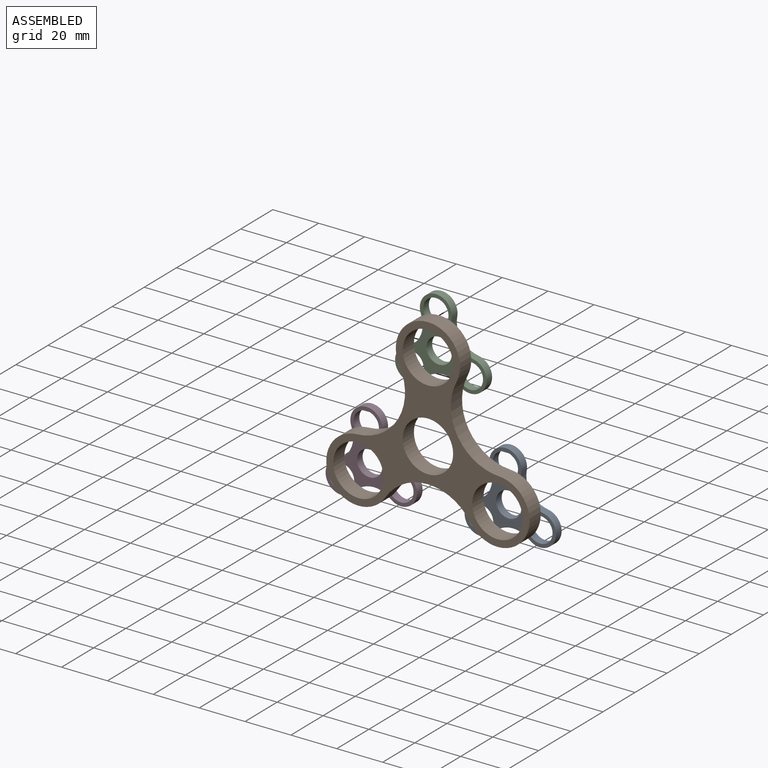
[diagram: assembled view]
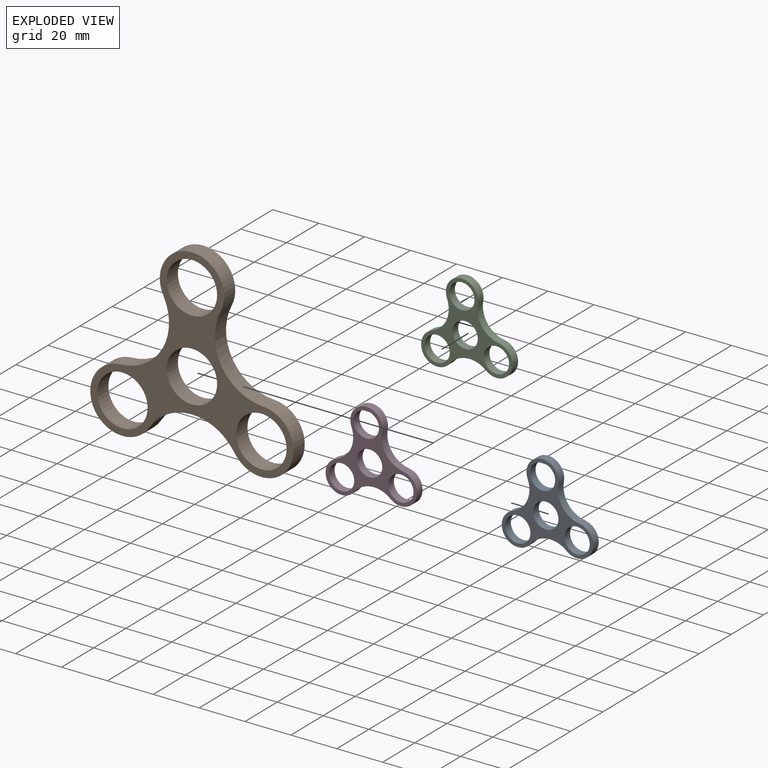
[diagram: exploded view]
GUIDED TOUR — MATED ASSEMBLY (Onshape document 0f2e64f7b2560d3460de28e0, AutoMate assembly 0f2e64f7b2560d3460de28e0_4292a1342529be8836060cc4_76e31e0c5da11d4ce6062992_default)

This assembly has 4 components, labeled P0..P3 below (a component is one placed occurrence of a part; the same part can appear more than once), held together by 1 mate. A mate is a constraint between two components; its type names the relative motion it leaves free:
  REVOLUTE — leaves rotation about the listed axis free (a hinge).
Axis/direction vectors are unit vectors and 'through' points are millimeter coordinates, both in the assembly's world frame.

MATES
  1. REVOLUTE "Revolute 1": P2 <-> P1, axis (0.000, -1.000, 0.000) through (3.50, -7.00, -2.67) mm

ASSEMBLY ORDER
  1. P3 — the base component [order verified]
  2. P0 [order verified]
  3. P2 [order verified]
  4. P1 [order verified]
Order-tag legend:
  [order verified] — this step's position reverses a verified removal order: the component was checked to insert without passing through the ones already placed.

Of the 4 components, 3 carry the full construction recipe — the FeatureScript program that regenerates the part's solid from scratch; the rest are supplied as boundary geometry only.
Each toured component is shown spotlighted twice — in the assembled view, then in the exploded view, where a leader line traces a displaced component back to its assembled socket (saturated green if recipe-attached, orange if geometry-only; every other component desaturated gray) — followed by its recipe or geometry summary and the mates that hold it.
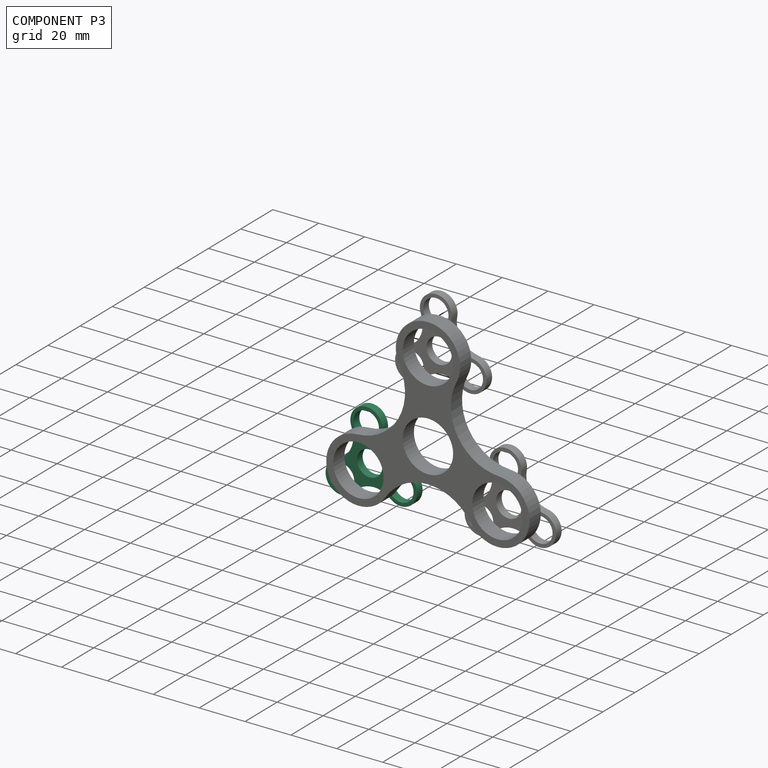
[diagram: component P3 — assembled]
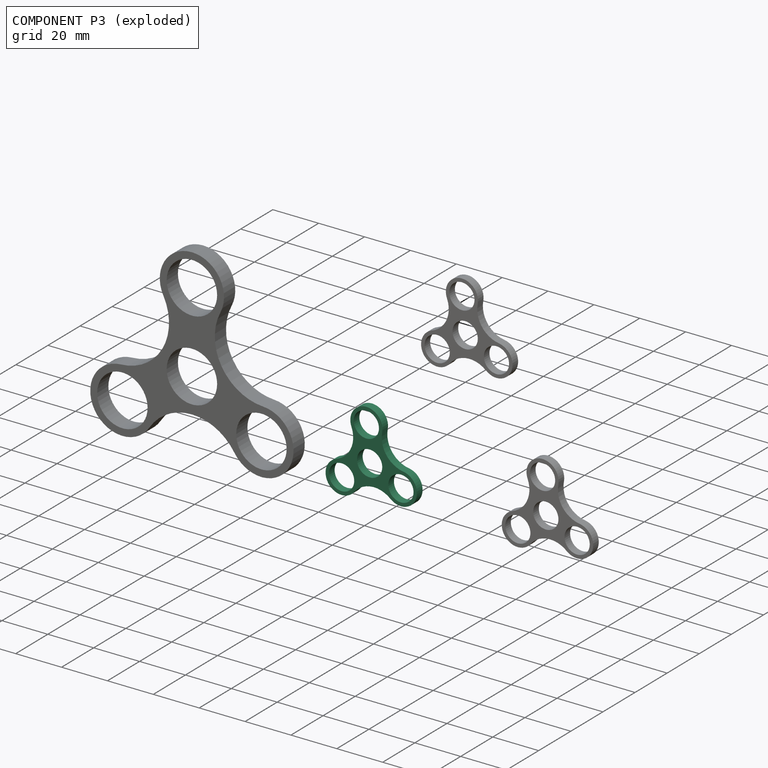
[diagram: component P3 — exploded]
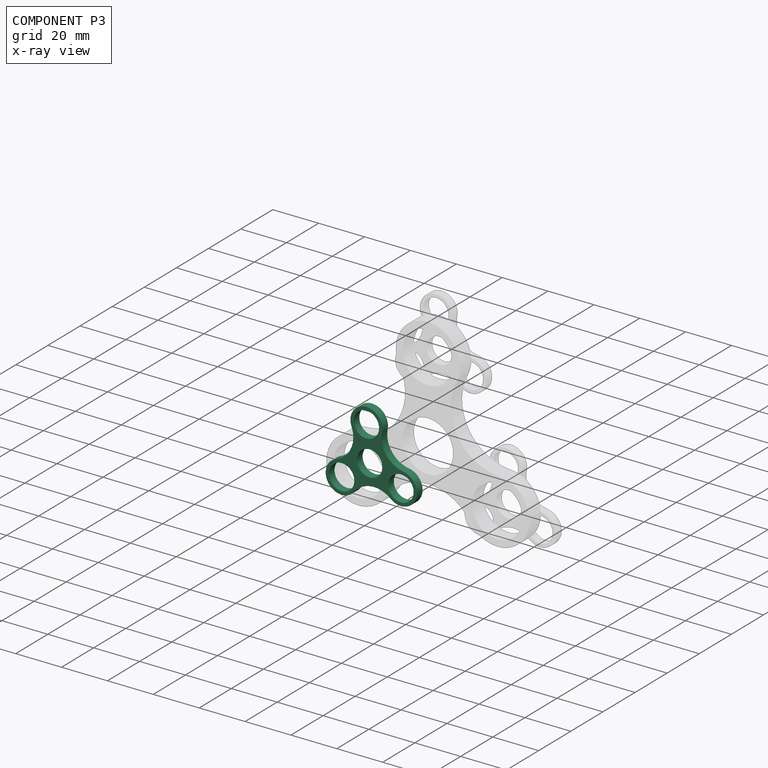
[diagram: component P3 — x-ray view]
COMPONENT P3 — same part as P0 (CADFS 00909535); its construction recipe is shown at P0.
Held by: no mates (free).
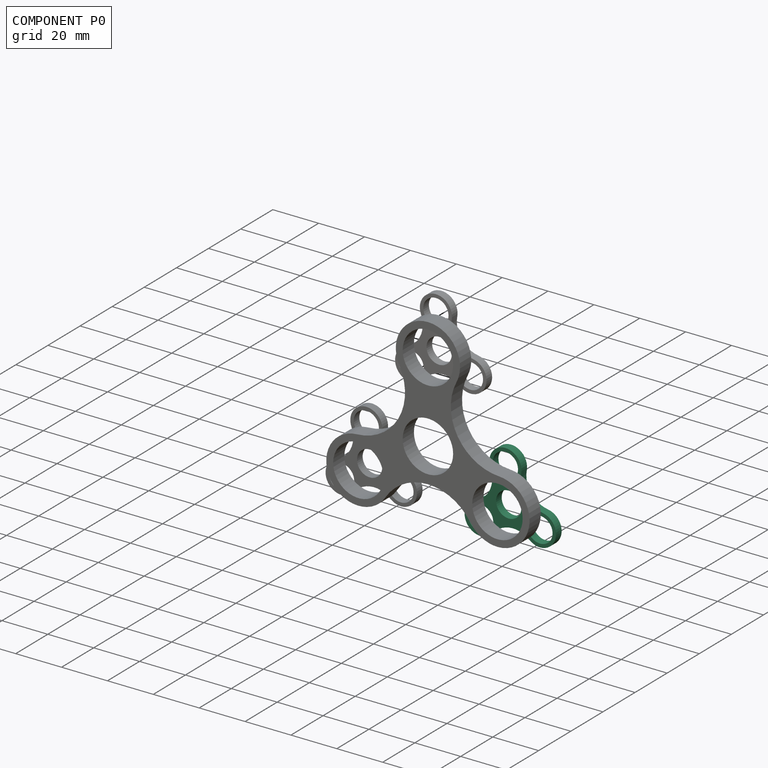
[diagram: component P0 — assembled]
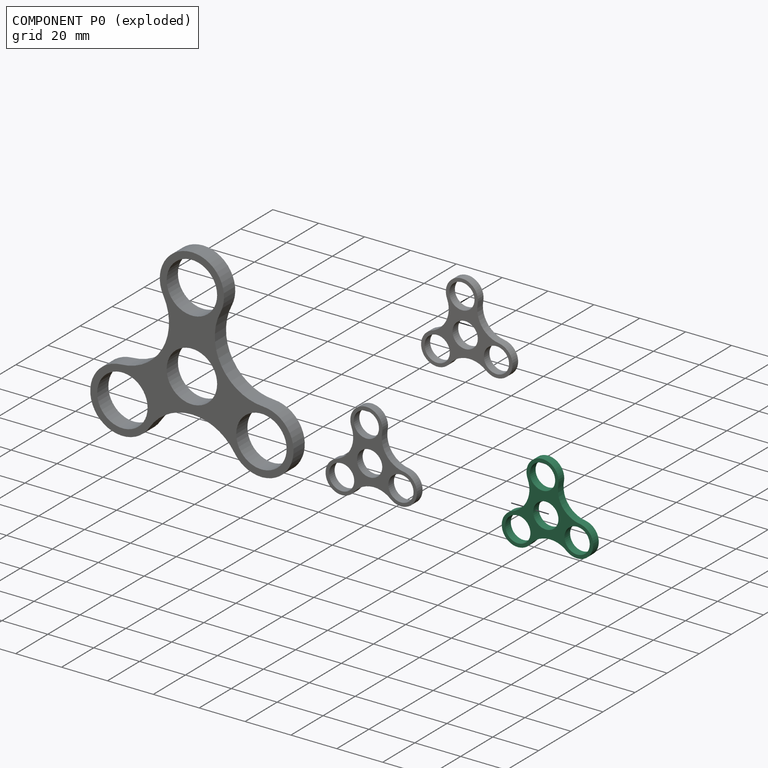
[diagram: component P0 — exploded]
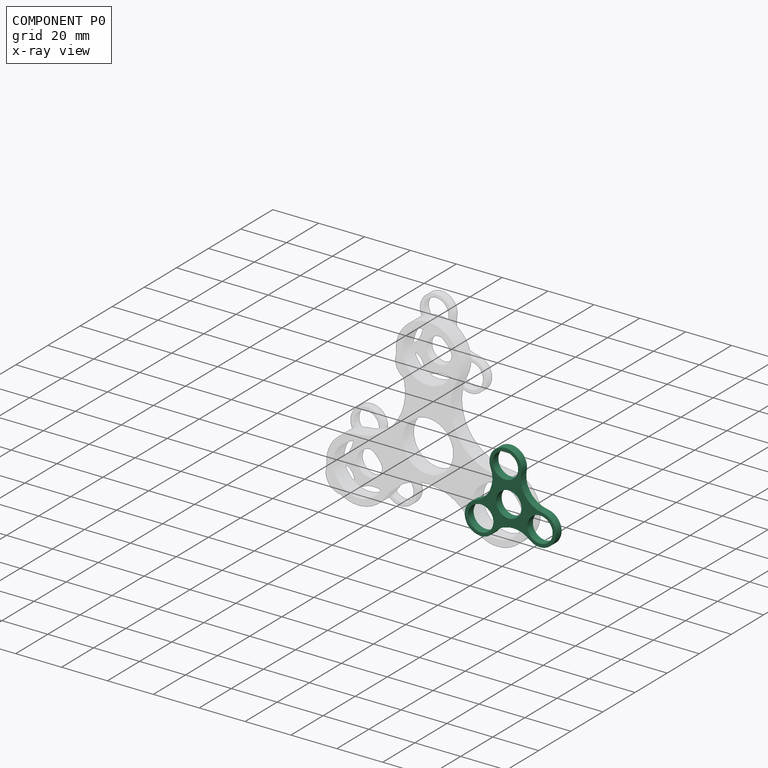
[diagram: component P0 — x-ray view]
COMPONENT P0 — recipe-attached (CADFS 00909535, mesh-verified: the recipe's output STEP matches this component's geometry to below the mesh-comparison resolution (tessellation chordal tolerance ~0.0813 mm)).
Held by: no mates (free).
Construction recipe (FeatureScript — the CAD program that rebuilds this solid; sketch coordinates are in the units given by the * unit suffixes, e.g. mm):

FeatureScript 1511;
import(path : "onshape/std/geometry.fs", version : "1511.0");
import(path : "onshape/std/common.fs", version : "1511.0");
const mm = millimeter;
const VERTEX = EntityType.VERTEX;
const EDGE = EntityType.EDGE;
const FACE = EntityType.FACE;
const BODY = EntityType.BODY;
function v(x, y){return vector(x, y);}
function OD(order){return orderDisambiguation(order);}
function OSD(set){return originalSetDisambiguation(set);}
function TD(topology){return topologyDisambiguation(topology);}
function TDD(query){return trueDependencyDisambiguation(query);}
function sQuery(a, b, c) {return sketchEntityQuery(a, b, c);}

annotation { "Feature Type Name" : "Feature", "Feature Type Description" : "" }
export const myFeature = defineFeature(function(context is Context, id is Id, definition is map)
    precondition{}
    {
        {
            var Q0;
            Q0=qCreatedBy(makeId("Front.planeOp"),FACE);
            var sketch = newSketch(context, id + "F0", { "sketchPlane" : qUnion([Q0])});
            skCircle(sketch, "E0", {"center": v(0, 0) * mm, "radius": 11 * mm});
            skCircle(sketch, "E1.cCircle", {"center": v(0, 0) * mm, "radius": 30 * mm, "construction": true});
            skLineSegment(sketch, "E1.0", {"start": v(0, 30) * mm, "end": v(25.98, -15) * mm, "construction": true});
            skLineSegment(sketch, "E1.1", {"start": v(25.98, -15) * mm, "end": v(-25.98, -15) * mm, "construction": true});
            skLineSegment(sketch, "E1.2", {"start": v(-25.98, -15) * mm, "end": v(0, 30) * mm, "construction": true});
            skArc(sketch, "E2", {"start": v(10.56, 26.93) * mm, "mid": v(0, 41) * mm, "end": v(-10.56, 26.93) * mm});
            skArc(sketch, "E3", {"start": v(-28.6, -4.32) * mm, "mid": v(-35.5, -20.5) * mm, "end": v(-18.04, -22.61) * mm});
            skArc(sketch, "E4", {"start": v(18.04, -22.61) * mm, "mid": v(35.5, -20.5) * mm, "end": v(28.6, -4.32) * mm});
            skArc(sketch, "E5", {"start": v(-28.6, -4.32) * mm, "mid": v(-12.92, 7.46) * mm, "end": v(-10.56, 26.93) * mm});
            skArc(sketch, "E6", {"start": v(18.04, -22.61) * mm, "mid": v(0, -14.92) * mm, "end": v(-18.04, -22.61) * mm});
            skArc(sketch, "E7", {"start": v(10.56, 26.93) * mm, "mid": v(12.92, 7.46) * mm, "end": v(28.6, -4.32) * mm});
            skArc(sketch, "E8.0", {"start": v(13.44, 26.1) * mm, "mid": v(15.52, 8.96) * mm, "end": v(29.32, -1.4) * mm});
            skArc(sketch, "E8.1", {"start": v(-29.32, -1.4) * mm, "mid": v(-15.52, 8.96) * mm, "end": v(-13.44, 26.1) * mm});
            skArc(sketch, "E8.2", {"start": v(-29.32, -1.4) * mm, "mid": v(-38.1, -22) * mm, "end": v(-15.88, -24.7) * mm});
            skArc(sketch, "E8.3", {"start": v(13.44, 26.1) * mm, "mid": v(0, 44) * mm, "end": v(-13.44, 26.1) * mm});
            skArc(sketch, "E8.4", {"start": v(15.88, -24.7) * mm, "mid": v(0, -17.92) * mm, "end": v(-15.88, -24.7) * mm});
            skArc(sketch, "E8.5", {"start": v(15.88, -24.7) * mm, "mid": v(38.1, -22) * mm, "end": v(29.32, -1.4) * mm});
            skCircle(sketch, "E9", {"center": v(-25.98, -15) * mm, "radius": 11 * mm});
            skCircle(sketch, "E10", {"center": v(25.98, -15) * mm, "radius": 11 * mm});
            skCircle(sketch, "E11", {"center": v(0, 30) * mm, "radius": 11 * mm});
            skSolve(sketch);
        }
        {
            var Q0;
            Q0=makeQuery(id+"F0.imprint","IMPRINT",FACE,{"disambiguationData":[TD([[makeQuery(id+"F0.imprint","IMPRINT",EDGE,{"derivedFrom":sQuery(id+"F0.wireOp",EDGE,"E0")}),-1.0]])]});
            var Q1;
            {var subQ1=sQuery(id+"F0.wireOp",EDGE,"E5");Q1=makeQuery(id+"F0.imprint","IMPRINT",FACE,{"disambiguationData":[TD([[makeQuery(id+"F0.imprint","IMPRINT",EDGE,{"derivedFrom":subQ1}),1.0]])]});}
            extrude(context, id + "F1", {"entities" : qUnion([Q0, Q1]), "depth" : 7 * mm, "offsetDistance" : 25 * mm});
        }
        {
            var Q0;
            Q0=makeQuery(id+"F1.opExtrude","SWEPT_BODY",BODY,{"disambiguationData":[OSD([sQuery(id+"F0.wireOp",EDGE,"E0"),sQuery(id+"F0.wireOp",EDGE,"E8.0"),sQuery(id+"F0.wireOp",EDGE,"E8.1"),sQuery(id+"F0.wireOp",EDGE,"E8.2"),sQuery(id+"F0.wireOp",EDGE,"E8.3"),sQuery(id+"F0.wireOp",EDGE,"E8.4"),sQuery(id+"F0.wireOp",EDGE,"E8.5"),sQuery(id+"F0.wireOp",EDGE,"E9"),sQuery(id+"F0.wireOp",EDGE,"E10"),sQuery(id+"F0.wireOp",EDGE,"E11")])]});
            var Q1;
            Q1=qCreatedBy(makeId("Origin.pointOp"),VERTEX);
            transform(context, id + "F2", {"entities" : qUnion([Q0]), "transformType" : TransformType.SCALE_UNIFORMLY, "scale" : 1 / 2, "scalePoint" : qUnion([Q1]), "makeCopy" : false});
        }
    });
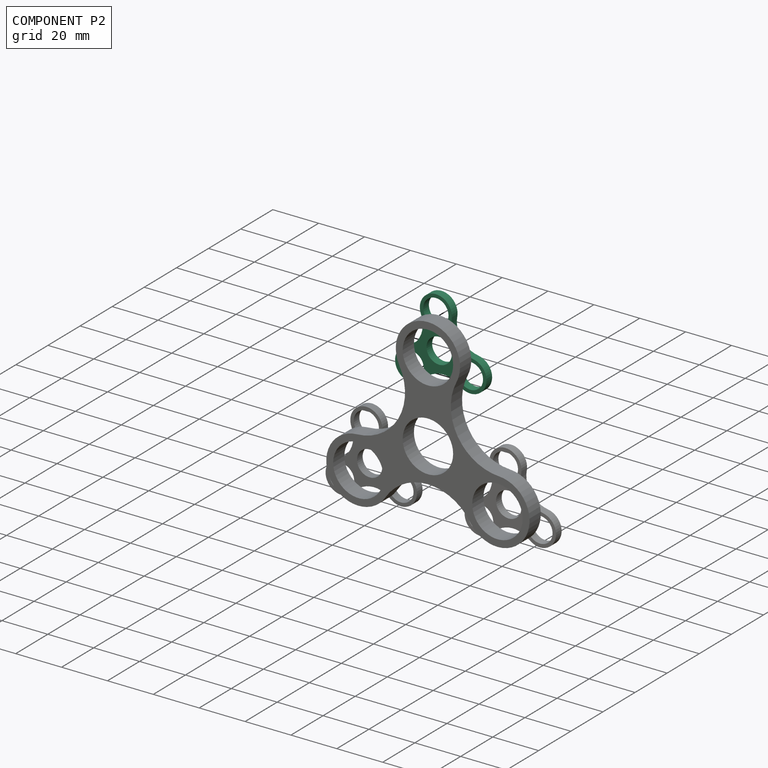
[diagram: component P2 — assembled]
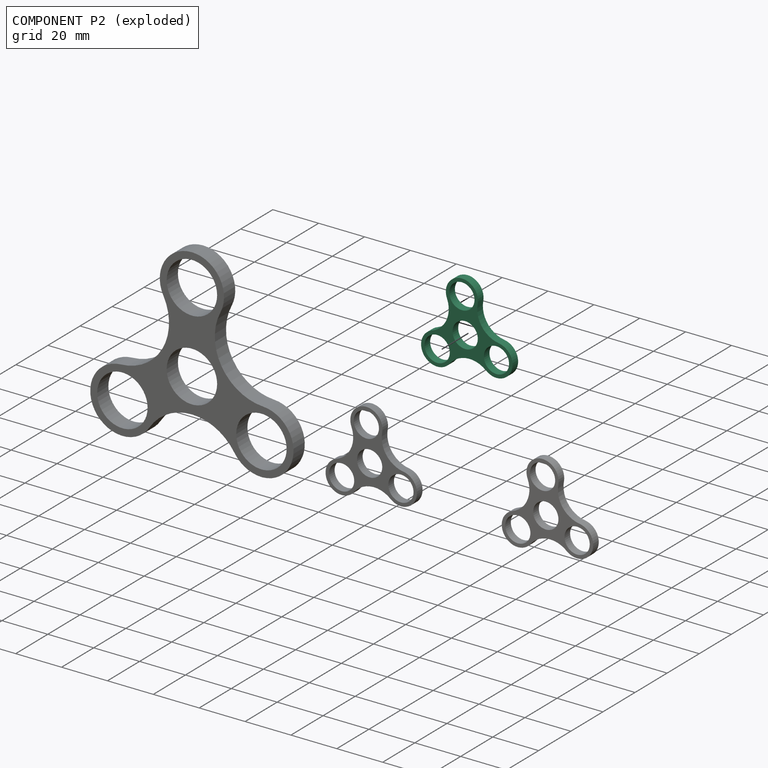
[diagram: component P2 — exploded]
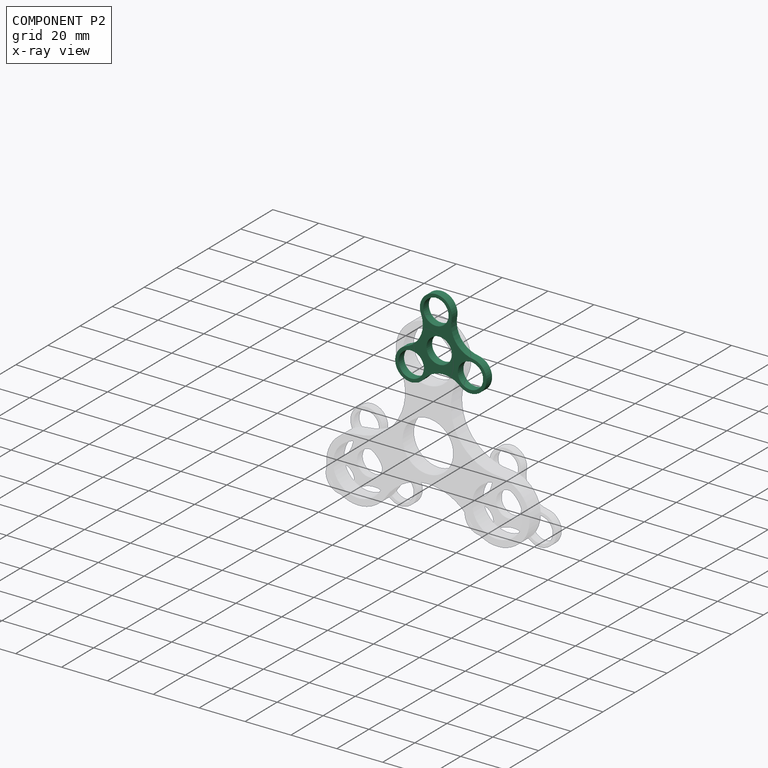
[diagram: component P2 — x-ray view]
COMPONENT P2 — same part as P0 (CADFS 00909535); its construction recipe is shown at P0.
Held by: REVOLUTE mate "Revolute 1" to P1.
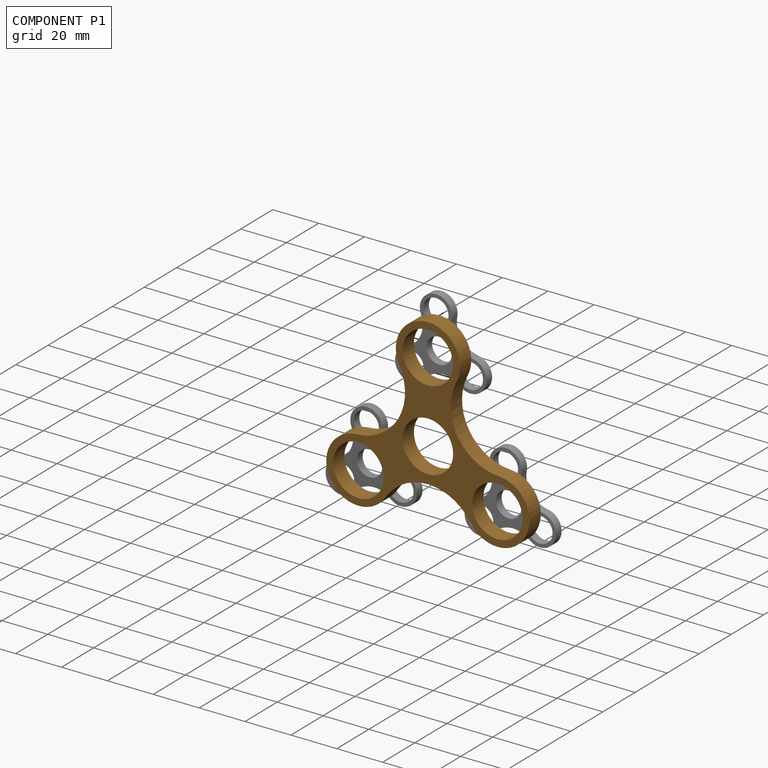
[diagram: component P1 — assembled]
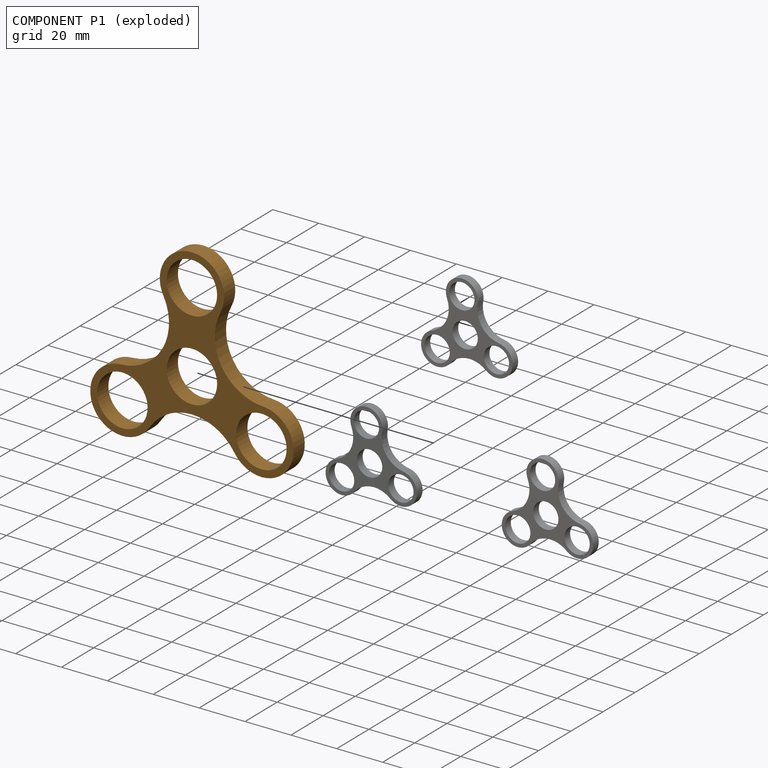
[diagram: component P1 — exploded]
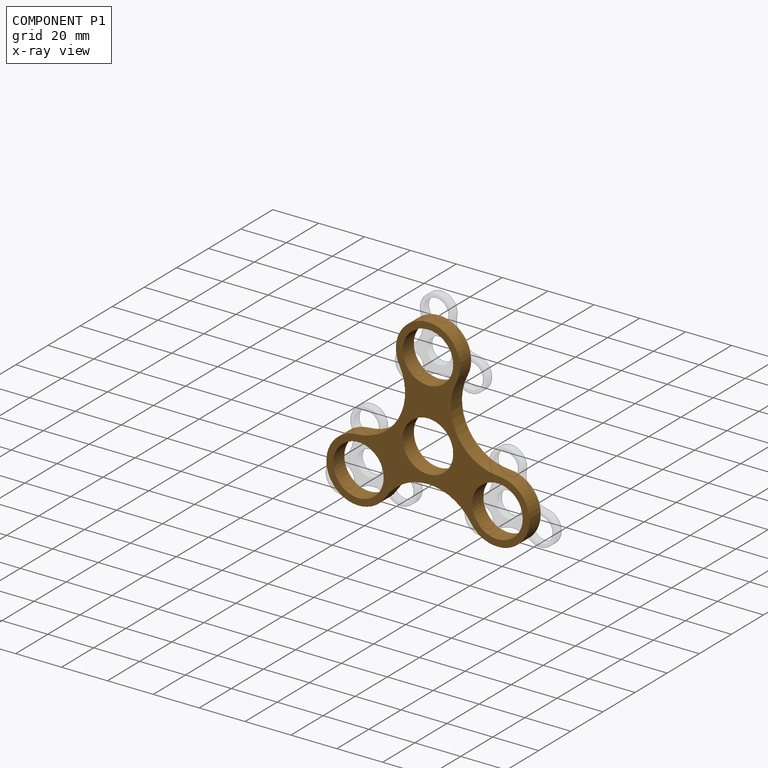
[diagram: component P1 — x-ray view]
COMPONENT P1 — geometry summary (no construction recipe available for this part):
  bounding box: 88.6 x 80.5 x 7.0 mm
  B-rep topology: 1 solid, 12 faces, 60 edges
  volume: 11115 mm^3 (22% of its bounding box)
  symmetry: 2-fold rotationally symmetric about the z axis; mirror-symmetric across its x mid-plane, y mid-plane
Held by: REVOLUTE mate "Revolute 1" to P2.
PROVENANCE & LICENSES
Assembly (occurrences, transforms, mates, per-part STEP geometry): AutoMate dataset, Zenodo record 7776208, CC0.
Construction recipes: CADFS (HuggingFace VladPyatov/CADFS, CC-BY-4.0, layered over the ABC dataset), FeatureScript reconstruction programs keyed by ABC model id.
Join: ABC meta listings map ABC model id -> Onshape documentId; within a shared document, parts are matched by geometric signature (bounding-box dims + volume at 0.1% relative tolerance, exact B-rep face/solid counts).
Verification: 3 of this assembly's 4 components carry a recipe attachment, and every attachment is mesh-verified: the CADFS STEP and the AutoMate member STEP were compared as meshes in their shared local frame (symmetric sampled-point-to-mesh distance); worst across the 3 attachments: below the mesh-comparison resolution (tessellation chordal tolerance ~0.0813 mm) on a 54 mm part.
Renders: orthographic iso camera (az 35 / el 25); the floor grid conveys scale (grid pitch printed in each image; no ruler). In the exploded view each component is displaced by its stored offset vector: the offsets alone carry the explosion direction (mate normal/axis signs are not orientation cues and do not encode it), and separation distances are assigned per mate-chain, not proportionally to assembly-order depth.
